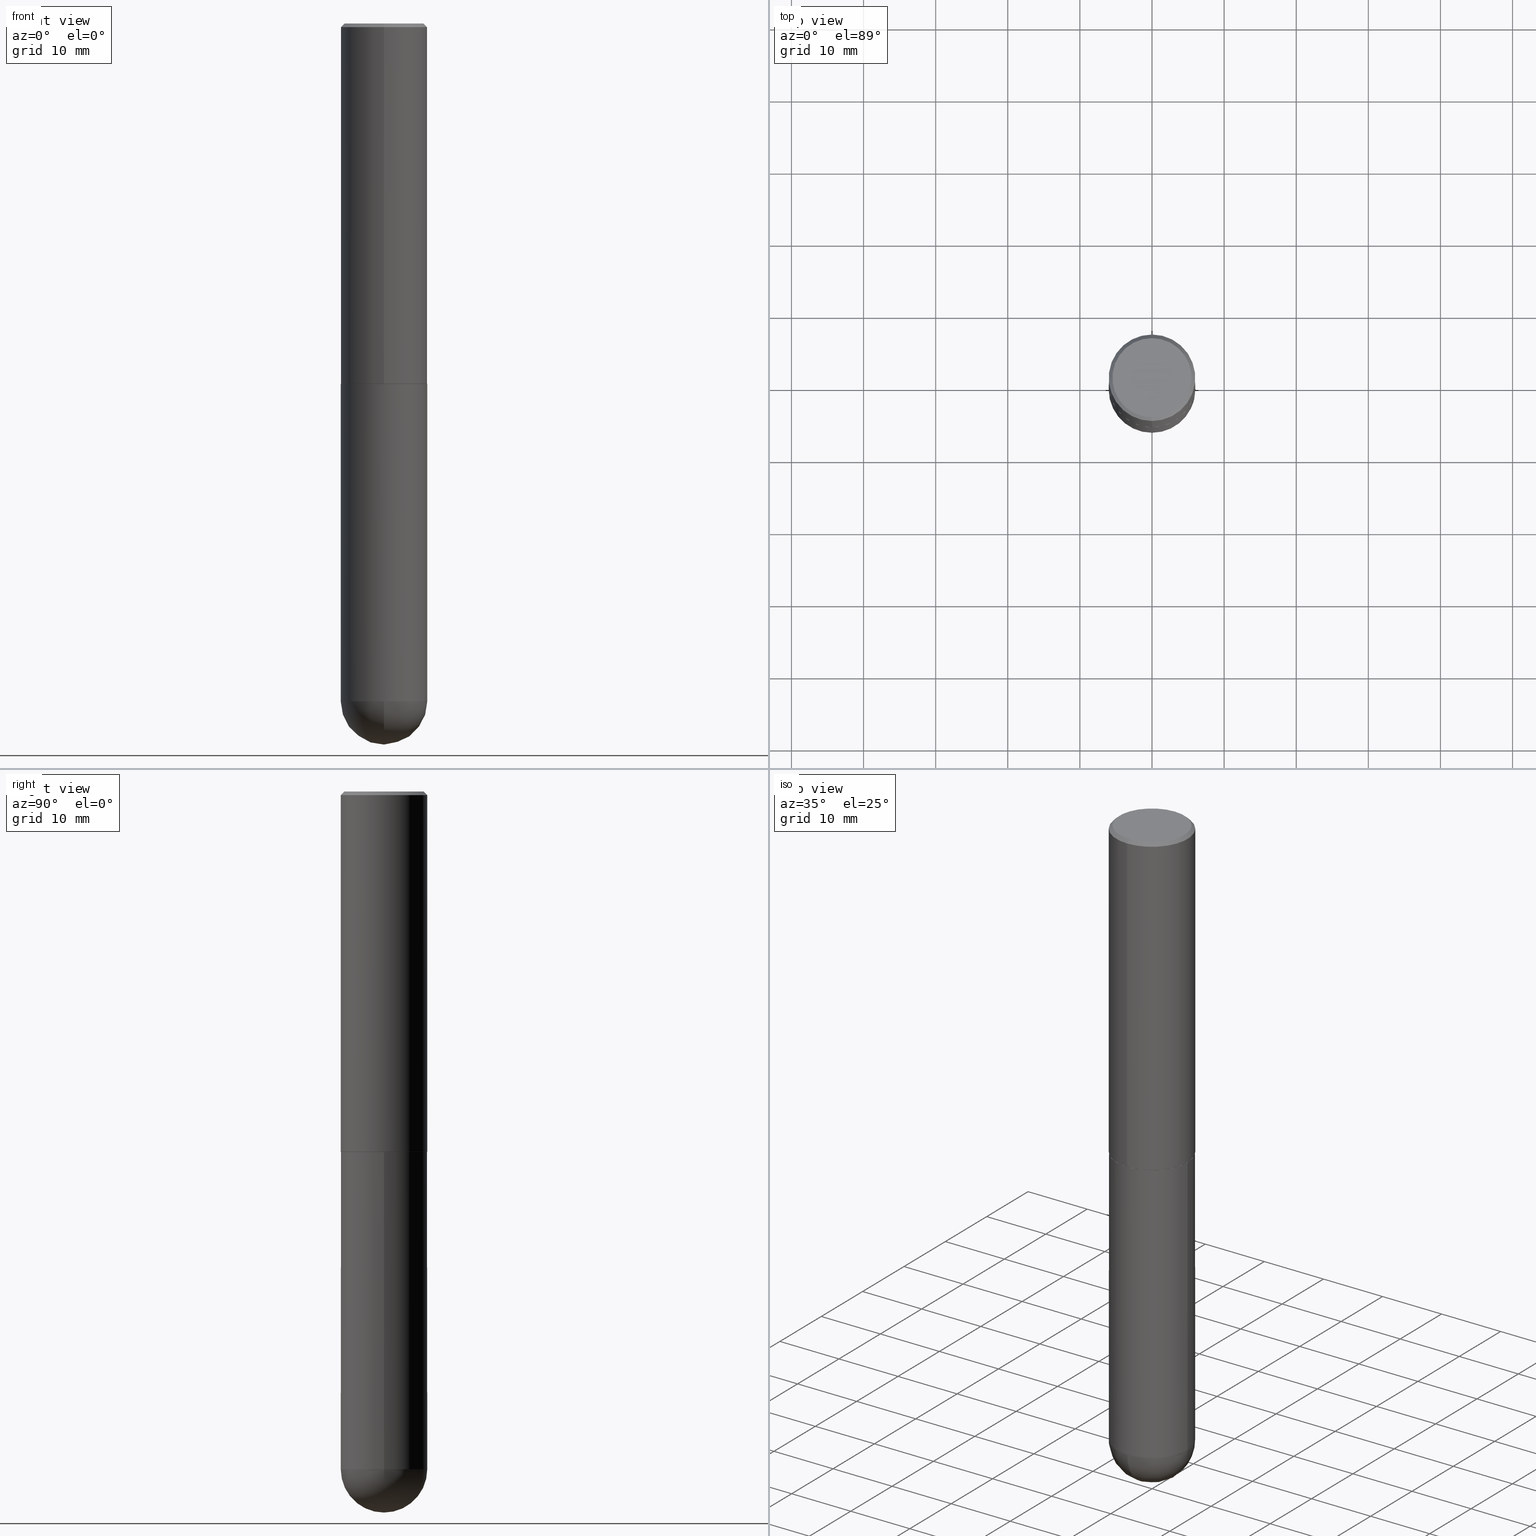
[diagram: canonical four-view strip — front | top / right | iso, engineering-drawing reading convention]
A machine part, canonical four-view strip (front | top / right | iso — engineering-drawing reading convention). The complete STEP part file that produces these views, byte-faithful:
ISO-10303-21;
HEADER;
FILE_DESCRIPTION (( 'STEP AP203' ),
    '1' );
FILE_NAME ('49563.STEP',
    '2024-04-10T12:25:05',
    ( '' ),
    ( '' ),
    'SwSTEP 2.0',
    'SolidWorks 2023',
    '' );
FILE_SCHEMA (( 'CONFIG_CONTROL_DESIGN' ));
ENDSEC;

DATA;
#1 = ORIENTED_EDGE ( 'NONE', *, *, #42, .F. ) ;
#2 = VECTOR ( 'NONE', #267, 39.37007874015748143 ) ;
#3 = CC_DESIGN_SECURITY_CLASSIFICATION ( #91, ( #269 ) ) ;
#4 = PERSON_AND_ORGANIZATION ( #50, #350 ) ;
#5 = CC_DESIGN_DATE_AND_TIME_ASSIGNMENT ( #202, #335, ( #91 ) ) ;
#6 = CARTESIAN_POINT ( 'NONE',  ( -1.551844647095920142E-15, -0.2162000000000000033, 6.958299922090800394E-16 ) ) ;
#7 = APPROVAL_STATUS ( 'not_yet_approved' ) ;
#8 = DIRECTION ( 'NONE',  ( 2.438088387897960049E-29, -3.491481338843145188E-15, -1.000000000000000000 ) ) ;
#9 = EDGE_CURVE ( 'NONE', #189, #373, #184, .T. ) ;
#10 = CARTESIAN_POINT ( 'NONE',  ( 0.000000000000000000, 0.000000000000000000, 0.000000000000000000 ) ) ;
#11 = VECTOR ( 'NONE', #204, 39.37007874015748143 ) ;
#12 = CIRCLE ( 'NONE', #158, 0.2361999999999999933 ) ;
#13 = LOCAL_TIME ( 8, 25, 5.000000000000000000, #266 ) ;
#14 = SHAPE_DEFINITION_REPRESENTATION ( #21, #132 ) ;
#15 = DIRECTION ( 'NONE',  ( -2.445468806185136597E-29, 3.491481338843145583E-15, 1.000000000000000000 ) ) ;
#16 = CARTESIAN_POINT ( 'NONE',  ( -0.2361999999999999933, -8.218825635286365458E-15, -1.968500000000000139 ) ) ;
#17 = MANIFOLD_SOLID_BREP ( 'Body-Move/Copy2[1]', #45 ) ;
#18 = DIRECTION ( 'NONE',  ( -2.445468806185136597E-29, 3.491481338843145583E-15, 1.000000000000000000 ) ) ;
#19 = CIRCLE ( 'NONE', #302, 0.2361999999999999933 ) ;
#20 = AXIS2_PLACEMENT_3D ( 'NONE', #272, #152, #342 ) ;
#21 = PRODUCT_DEFINITION_SHAPE ( 'NONE', 'NONE',  #86 ) ;
#22 = DIRECTION ( 'NONE',  ( -6.982962677686265922E-15, -1.000000000000000000, 3.487819265831411744E-15 ) ) ;
#23 = FACE_OUTER_BOUND ( 'NONE', #155, .T. ) ;
#24 = ADVANCED_FACE ( 'NONE', ( #357 ), #293, .T. ) ;
#25 = CARTESIAN_POINT ( 'NONE',  ( 1.509716530915770718E-15, 0.2162000000000000033, -7.849205782917402841E-16 ) ) ;
#26 = ORIENTED_EDGE ( 'NONE', *, *, #80, .T. ) ;
#27 = EDGE_CURVE ( 'NONE', #352, #40, #19, .T. ) ;
#28 = VECTOR ( 'NONE', #229, 39.37007874015748854 ) ;
#29 = CC_DESIGN_APPROVAL ( #346, ( #269 ) ) ;
#30 = DIRECTION ( 'NONE',  ( -6.982962677686265133E-15, -1.000000000000000000, 3.469747663417773847E-15 ) ) ;
#31 = DIRECTION ( 'NONE',  ( 0.000000000000000000, 0.000000000000000000, 1.000000000000000000 ) ) ;
#32 = ORIENTED_EDGE ( 'NONE', *, *, #195, .F. ) ;
#33 = AXIS2_PLACEMENT_3D ( 'NONE', #241, #301, #341 ) ;
#34 = PERSON_AND_ORGANIZATION ( #50, #350 ) ;
#35 = LOCAL_TIME ( 8, 25, 5.000000000000000000, #330 ) ;
#36 = ORIENTED_EDGE ( 'NONE', *, *, #328, .F. ) ;
#37 = FACE_OUTER_BOUND ( 'NONE', #381, .T. ) ;
#38 = ORIENTED_EDGE ( 'NONE', *, *, #130, .T. ) ;
#39 = LINE ( 'NONE', #67, #28 ) ;
#40 = VERTEX_POINT ( 'NONE', #16 ) ;
#41 = EDGE_CURVE ( 'NONE', #383, #289, #73, .T. ) ;
#42 = EDGE_CURVE ( 'NONE', #317, #40, #138, .T. ) ;
#43 = CARTESIAN_POINT ( 'NONE',  ( 1.671196514507803309E-15, 0.2351999999999931368, -1.968500000000000805 ) ) ;
#44 = CARTESIAN_POINT ( 'NONE',  ( 1.649375784469544054E-15, 0.2361999999999931377, -1.968500000000000805 ) ) ;
#45 = CLOSED_SHELL ( 'NONE', ( #304, #340, #65, #144, #24 ) ) ;
#46 = AXIS2_PLACEMENT_3D ( 'NONE', #273, #303, #115 ) ;
#47 = COORDINATED_UNIVERSAL_TIME_OFFSET ( 5, 0, .BEHIND. ) ;
#48 = DIRECTION ( 'NONE',  ( -6.982962677686265922E-15, -1.000000000000000000, 3.493171675597534146E-15 ) ) ;
#49 = DIRECTION ( 'NONE',  ( -7.105427357601001070E-15, -1.000000000000000000, 0.000000000000000000 ) ) ;
#50 = PERSON ( 'UNSPECIFIED', 'UNSPECIFIED', 'UNSPECIFIED', ('UNSPECIFIED'), ('UNSPECIFIED'), ('UNSPECIFIED') ) ;
#51 = DIRECTION ( 'NONE',  ( -6.982962677686265922E-15, -1.000000000000000000, 3.493171675597534146E-15 ) ) ;
#52 = CARTESIAN_POINT ( 'NONE',  ( 4.811581814490893760E-29, -6.876308443413746847E-15, -1.968500000000000139 ) ) ;
#53 = CARTESIAN_POINT ( 'NONE',  ( 4.809137526040556277E-29, -6.872815271738149679E-15, -1.967500000000000249 ) ) ;
#54 = ORIENTED_EDGE ( 'NONE', *, *, #191, .F. ) ;
#55 = CARTESIAN_POINT ( 'NONE',  ( 9.050190957929953666E-29, -1.292127413879071357E-14, -3.700800000000000090 ) ) ;
#56 = CC_DESIGN_PERSON_AND_ORGANIZATION_ASSIGNMENT ( #396, #295, ( #269 ) ) ;
#57 = CIRCLE ( 'NONE', #120, 0.2362000000000002709 ) ;
#58 = EDGE_CURVE ( 'NONE', #216, #354, #57, .T. ) ;
#59 =( GEOMETRIC_REPRESENTATION_CONTEXT ( 3 ) GLOBAL_UNCERTAINTY_ASSIGNED_CONTEXT ( ( #90 ) ) GLOBAL_UNIT_ASSIGNED_CONTEXT ( ( #288, #122, #410 ) ) REPRESENTATION_CONTEXT ( 'NONE', 'WORKASPACE' ) );
#60 = ORIENTED_EDGE ( 'NONE', *, *, #70, .F. ) ;
#61 = APPLICATION_PROTOCOL_DEFINITION ( 'international standard', 'config_control_design', 1994, #143 ) ;
#62 = EDGE_LOOP ( 'NONE', ( #54, #276, #93, #320 ) ) ;
#63 = AXIS2_PLACEMENT_3D ( 'NONE', #338, #148, #402 ) ;
#64 = CARTESIAN_POINT ( 'NONE',  ( 4.811581814490893760E-29, -6.876308443413746847E-15, -1.968500000000000139 ) ) ;
#65 = ADVANCED_FACE ( 'NONE', ( #292 ), #337, .T. ) ;
#66 = ORIENTED_EDGE ( 'NONE', *, *, #41, .T. ) ;
#67 = CARTESIAN_POINT ( 'NONE',  ( -1.620449627073635079E-15, -0.2362000000000000766, -0.01999999999999922673 ) ) ;
#68 = ORIENTED_EDGE ( 'NONE', *, *, #353, .T. ) ;
#69 = ORIENTED_EDGE ( 'NONE', *, *, #291, .T. ) ;
#70 = EDGE_CURVE ( 'NONE', #160, #131, #397, .T. ) ;
#71 = AXIS2_PLACEMENT_3D ( 'NONE', #10, #296, #142 ) ;
#72 = AXIS2_PLACEMENT_3D ( 'NONE', #129, #285, #314 ) ;
#73 = LINE ( 'NONE', #167, #11 ) ;
#74 = DIRECTION ( 'NONE',  ( -2.444288450338274442E-29, 3.493171675597534541E-15, 1.000000000000000000 ) ) ;
#75 = CARTESIAN_POINT ( 'NONE',  ( -0.2361999999999999933, 1.678301941865356591E-15, -1.161852468318208757E-29 ) ) ;
#76 = EDGE_CURVE ( 'NONE', #373, #160, #235, .T. ) ;
#77 = VECTOR ( 'NONE', #74, 39.37007874015748143 ) ;
#78 = CARTESIAN_POINT ( 'NONE',  ( 4.811581814490893760E-29, -6.876308443413746847E-15, -1.968500000000000139 ) ) ;
#79 = AXIS2_PLACEMENT_3D ( 'NONE', #136, #101, #107 ) ;
#80 = EDGE_CURVE ( 'NONE', #339, #289, #201, .T. ) ;
#81 = CARTESIAN_POINT ( 'NONE',  ( 1.649375784469496525E-15, 0.2361999999999999378, -0.02000000000000087472 ) ) ;
#82 = CYLINDRICAL_SURFACE ( 'NONE', #110, 0.2362000000000001043 ) ;
#83 = PRODUCT ( '49563', '49563', '', ( #154 ) ) ;
#84 = ORIENTED_EDGE ( 'NONE', *, *, #343, .T. ) ;
#85 = LINE ( 'NONE', #212, #369 ) ;
#86 = PRODUCT_DEFINITION ( 'UNKNOWN', '', #269, #187 ) ;
#87 = FACE_OUTER_BOUND ( 'NONE', #96, .T. ) ;
#88 = CARTESIAN_POINT ( 'NONE',  ( -0.2361999999999999933, -8.218825635286368613E-15, -3.700800000000000090 ) ) ;
#89 = DIRECTION ( 'NONE',  ( 2.444288450338274722E-29, -3.493171675597534541E-15, -1.000000000000000000 ) ) ;
#90 = UNCERTAINTY_MEASURE_WITH_UNIT (LENGTH_MEASURE( 1.000000000000000082E-05 ), #288, 'distance_accuracy_value', 'NONE');
#91 = SECURITY_CLASSIFICATION ( '', '', #391 ) ;
#92 = COORDINATED_UNIVERSAL_TIME_OFFSET ( 5, 0, .BEHIND. ) ;
#93 = ORIENTED_EDGE ( 'NONE', *, *, #76, .T. ) ;
#94 = CARTESIAN_POINT ( 'NONE',  ( 0.000000000000000000, 0.000000000000000000, 0.000000000000000000 ) ) ;
#95 = ORIENTED_EDGE ( 'NONE', *, *, #291, .F. ) ;
#96 = EDGE_LOOP ( 'NONE', ( #278, #313, #388, #32, #84 ) ) ;
#97 = PERSON_AND_ORGANIZATION ( #50, #350 ) ;
#98 = ORIENTED_EDGE ( 'NONE', *, *, #382, .F. ) ;
#99 = DIRECTION ( 'NONE',  ( 1.000000000000000000, -6.982962677686265133E-15, 0.000000000000000000 ) ) ;
#100 = ORIENTED_EDGE ( 'NONE', *, *, #208, .T. ) ;
#101 = DIRECTION ( 'NONE',  ( -2.444288450338274722E-29, 3.493171675597534541E-15, 1.000000000000000000 ) ) ;
#102 = CONICAL_SURFACE ( 'NONE', #193, 0.2361999999999999933, 0.7853981633974482790 ) ;
#103 = CARTESIAN_POINT ( 'NONE',  ( 9.050190957929953666E-29, -1.292127413879071357E-14, -3.700800000000000090 ) ) ;
#104 = APPROVAL_DATE_TIME ( #297, #109 ) ;
#105 = DIRECTION ( 'NONE',  ( -1.000000000000000000, 6.982962677686265922E-15, -4.876176775795935793E-29 ) ) ;
#106 = CC_DESIGN_PERSON_AND_ORGANIZATION_ASSIGNMENT ( #97, #380, ( #86 ) ) ;
#107 = DIRECTION ( 'NONE',  ( -6.982962677686265133E-15, -1.000000000000000000, 3.469747663417773847E-15 ) ) ;
#108 = APPROVAL_DATE_TIME ( #236, #346 ) ;
#109 = APPROVAL ( #7, 'UNSPECIFIED' ) ;
#110 = AXIS2_PLACEMENT_3D ( 'NONE', #114, #210, #51 ) ;
#111 = SPHERICAL_SURFACE ( 'NONE', #72, 0.2362000000000002709 ) ;
#112 = EDGE_CURVE ( 'NONE', #383, #160, #290, .T. ) ;
#113 = ORIENTED_EDGE ( 'NONE', *, *, #260, .F. ) ;
#114 = CARTESIAN_POINT ( 'NONE',  ( 0.000000000000000000, 0.000000000000000000, 0.000000000000000000 ) ) ;
#115 = DIRECTION ( 'NONE',  ( -6.982962677686265922E-15, -1.000000000000000000, 3.493171675597534541E-15 ) ) ;
#116 = DIRECTION ( 'NONE',  ( 6.982962677686265922E-15, 1.000000000000000000, -3.493171675597534541E-15 ) ) ;
#117 = FACE_OUTER_BOUND ( 'NONE', #211, .T. ) ;
#118 = APPROVAL_ROLE ( '' ) ;
#119 = VERTEX_POINT ( 'NONE', #6 ) ;
#120 = AXIS2_PLACEMENT_3D ( 'NONE', #399, #237, #49 ) ;
#121 = AXIS2_PLACEMENT_3D ( 'NONE', #103, #203, #329 ) ;
#122 =( NAMED_UNIT ( * ) PLANE_ANGLE_UNIT ( ) SI_UNIT ( $, .RADIAN. ) );
#123 = ORIENTED_EDGE ( 'NONE', *, *, #208, .F. ) ;
#124 = COORDINATED_UNIVERSAL_TIME_OFFSET ( 5, 0, .BEHIND. ) ;
#125 = ORIENTED_EDGE ( 'NONE', *, *, #70, .T. ) ;
#126 = PERSON_AND_ORGANIZATION_ROLE ( 'design_owner' ) ;
#127 = ORIENTED_EDGE ( 'NONE', *, *, #58, .F. ) ;
#128 = AXIS2_PLACEMENT_3D ( 'NONE', #64, #384, #190 ) ;
#129 = CARTESIAN_POINT ( 'NONE',  ( 8.719071180016067419E-29, -1.339545650693076387E-14, -3.700800000000000090 ) ) ;
#130 = EDGE_CURVE ( 'NONE', #354, #408, #232, .T. ) ;
#131 = VERTEX_POINT ( 'NONE', #171 ) ;
#132 = ADVANCED_BREP_SHAPE_REPRESENTATION ( '49563', ( #17, #153, #268 ), #59 ) ;
#133 = ADVANCED_FACE ( 'NONE', ( #368 ), #225, .T. ) ;
#134 = CARTESIAN_POINT ( 'NONE',  ( -1.649375784469449391E-15, -0.2362000000000070710, -1.967499999999999361 ) ) ;
#135 = CALENDAR_DATE ( 2024, 10, 4 ) ;
#136 = CARTESIAN_POINT ( 'NONE',  ( 4.809137526040556277E-29, -6.872815271738149679E-15, -1.967500000000000249 ) ) ;
#137 = CIRCLE ( 'NONE', #379, 0.2362000000000002153 ) ;
#138 = LINE ( 'NONE', #75, #2 ) ;
#139 = APPROVAL_PERSON_ORGANIZATION ( #161, #181, #118 ) ;
#140 = CALENDAR_DATE ( 2024, 10, 4 ) ;
#141 = APPROVAL_STATUS ( 'not_yet_approved' ) ;
#142 = DIRECTION ( 'NONE',  ( 1.000000000000000000, -6.982962677686266711E-15, 4.876176775795936353E-29 ) ) ;
#143 = APPLICATION_CONTEXT ( 'configuration controlled 3d designs of mechanical parts and assemblies' ) ;
#144 = ADVANCED_FACE ( 'NONE', ( #231 ), #209, .F. ) ;
#145 = CIRCLE ( 'NONE', #178, 0.2361999999999999933 ) ;
#146 = FACE_OUTER_BOUND ( 'NONE', #196, .T. ) ;
#147 = DIRECTION ( 'NONE',  ( -6.982962677686265133E-15, -1.000000000000000000, 3.484499991918703113E-15 ) ) ;
#148 = DIRECTION ( 'NONE',  ( 2.444288450338274722E-29, -3.493171675597534541E-15, -1.000000000000000000 ) ) ;
#149 = CIRCLE ( 'NONE', #387, 0.2361999999999999933 ) ;
#150 = CIRCLE ( 'NONE', #275, 0.2351999999999999924 ) ;
#151 = ORIENTED_EDGE ( 'NONE', *, *, #265, .F. ) ;
#152 = DIRECTION ( 'NONE',  ( -2.445468806185136597E-29, 3.491481338843145583E-15, 1.000000000000000000 ) ) ;
#153 = MANIFOLD_SOLID_BREP ( 'Body-Move/Copy2[2]', #347 ) ;
#154 = MECHANICAL_CONTEXT ( 'NONE', #164, 'mechanical' ) ;
#155 = EDGE_LOOP ( 'NONE', ( #165, #281, #125, #228 ) ) ;
#156 = CARTESIAN_POINT ( 'NONE',  ( -1.642392821791761602E-15, -0.2352000000000068480, -1.968499999999999250 ) ) ;
#157 = EDGE_LOOP ( 'NONE', ( #322, #356 ) ) ;
#158 = AXIS2_PLACEMENT_3D ( 'NONE', #400, #248, #99 ) ;
#159 = APPROVAL_STATUS ( 'not_yet_approved' ) ;
#160 = VERTEX_POINT ( 'NONE', #134 ) ;
#161 = PERSON_AND_ORGANIZATION ( #50, #350 ) ;
#162 = ORIENTED_EDGE ( 'NONE', *, *, #58, .T. ) ;
#163 = ADVANCED_FACE ( 'NONE', ( #207 ), #360, .T. ) ;
#164 = APPLICATION_CONTEXT ( 'configuration controlled 3d designs of mechanical parts and assemblies' ) ;
#165 = ORIENTED_EDGE ( 'NONE', *, *, #41, .F. ) ;
#166 = PERSON_AND_ORGANIZATION ( #50, #350 ) ;
#167 = CARTESIAN_POINT ( 'NONE',  ( 1.678301941865357183E-15, 0.2362000000000001043, -8.250871497761379229E-16 ) ) ;
#168 = DIRECTION ( 'NONE',  ( 1.000000000000000000, -6.982962677686269077E-15, 0.000000000000000000 ) ) ;
#169 = CIRCLE ( 'NONE', #348, 0.2162000000000000033 ) ;
#170 = CARTESIAN_POINT ( 'NONE',  ( 4.811581814490893760E-29, -6.876308443413746847E-15, -1.968500000000000139 ) ) ;
#171 = CARTESIAN_POINT ( 'NONE',  ( -1.620449627073635079E-15, -0.2362000000000000766, -0.01999999999999922673 ) ) ;
#172 = LOCAL_TIME ( 8, 25, 5.000000000000000000, #92 ) ;
#173 = EDGE_CURVE ( 'NONE', #289, #131, #145, .T. ) ;
#174 = CARTESIAN_POINT ( 'NONE',  ( 4.888576900676561635E-31, -6.986343351195086880E-17, -0.02000000000000005246 ) ) ;
#175 = DIRECTION ( 'NONE',  ( 6.982962677686265922E-15, 1.000000000000000000, -3.487819265831411744E-15 ) ) ;
#176 = VECTOR ( 'NONE', #332, 39.37007874015748854 ) ;
#177 = DIRECTION ( 'NONE',  ( -2.445468806185136877E-29, 3.491481338843145188E-15, 1.000000000000000000 ) ) ;
#178 = AXIS2_PLACEMENT_3D ( 'NONE', #174, #365, #364 ) ;
#179 = CARTESIAN_POINT ( 'NONE',  ( 9.306790425912204830E-29, -1.420568132046758614E-14, -3.937000000000000277 ) ) ;
#180 = CARTESIAN_POINT ( 'NONE',  ( 0.000000000000000000, 0.000000000000000000, 0.000000000000000000 ) ) ;
#181 = APPROVAL ( #159, 'UNSPECIFIED' ) ;
#182 = ORIENTED_EDGE ( 'NONE', *, *, #265, .T. ) ;
#183 = DIRECTION ( 'NONE',  ( 1.000000000000000000, -6.982962677686265133E-15, 0.000000000000000000 ) ) ;
#184 = CIRCLE ( 'NONE', #239, 0.2351999999999999924 ) ;
#185 = LOCAL_TIME ( 8, 25, 5.000000000000000000, #124 ) ;
#186 = CC_DESIGN_PERSON_AND_ORGANIZATION_ASSIGNMENT ( #393, #324, ( #91 ) ) ;
#187 = DESIGN_CONTEXT ( 'detailed design', #143, 'design' ) ;
#188 = DATE_TIME_ROLE ( 'creation_date' ) ;
#189 = VERTEX_POINT ( 'NONE', #298 ) ;
#190 = DIRECTION ( 'NONE',  ( -6.982962677686265133E-15, -1.000000000000000000, 3.484499991918703113E-15 ) ) ;
#191 = EDGE_CURVE ( 'NONE', #189, #383, #331, .T. ) ;
#192 = ORIENTED_EDGE ( 'NONE', *, *, #353, .F. ) ;
#193 = AXIS2_PLACEMENT_3D ( 'NONE', #374, #89, #175 ) ;
#194 = CC_DESIGN_APPROVAL ( #181, ( #86 ) ) ;
#195 = EDGE_CURVE ( 'NONE', #408, #352, #85, .T. ) ;
#196 = EDGE_LOOP ( 'NONE', ( #151, #344 ) ) ;
#197 = CARTESIAN_POINT ( 'NONE',  ( 0.2361999999999999933, -8.522356799982228232E-15, -1.968500000000000139 ) ) ;
#198 = EDGE_LOOP ( 'NONE', ( #359, #68 ) ) ;
#199 = CC_DESIGN_PERSON_AND_ORGANIZATION_ASSIGNMENT ( #166, #263, ( #269 ) ) ;
#200 = ORIENTED_EDGE ( 'NONE', *, *, #195, .T. ) ;
#201 = LINE ( 'NONE', #81, #176 ) ;
#202 = DATE_AND_TIME ( #135, #35 ) ;
#203 = DIRECTION ( 'NONE',  ( -2.445468806185136597E-29, 3.491481338843145583E-15, 1.000000000000000000 ) ) ;
#204 = DIRECTION ( 'NONE',  ( -2.444288450338274442E-29, 3.493171675597534541E-15, 1.000000000000000000 ) ) ;
#205 = AXIS2_PLACEMENT_3D ( 'NONE', #412, #321, #256 ) ;
#206 = DIRECTION ( 'NONE',  ( -2.444288450338274722E-29, 3.493171675597534541E-15, 1.000000000000000000 ) ) ;
#207 = FACE_OUTER_BOUND ( 'NONE', #230, .T. ) ;
#208 = EDGE_CURVE ( 'NONE', #131, #289, #316, .T. ) ;
#209 = PLANE ( 'NONE',  #262 ) ;
#210 = DIRECTION ( 'NONE',  ( -2.444288450338274722E-29, 3.493171675597534541E-15, 1.000000000000000000 ) ) ;
#211 = EDGE_LOOP ( 'NONE', ( #389, #254, #100, #257 ) ) ;
#212 = CARTESIAN_POINT ( 'NONE',  ( 0.2361999999999999933, -1.649375784469496131E-15, 1.151752954443000088E-29 ) ) ;
#213 = CIRCLE ( 'NONE', #33, 0.2162000000000000033 ) ;
#214 = CYLINDRICAL_SURFACE ( 'NONE', #255, 0.2361999999999999933 ) ;
#215 = EDGE_CURVE ( 'NONE', #119, #339, #213, .T. ) ;
#216 = VERTEX_POINT ( 'NONE', #179 ) ;
#217 = DIRECTION ( 'NONE',  ( 1.000000000000000000, -6.982962677686265922E-15, 4.883557194083112340E-29 ) ) ;
#218 = CARTESIAN_POINT ( 'NONE',  ( 1.649375784469585666E-15, 0.2361999999999869759, -3.700800000000000978 ) ) ;
#219 = CALENDAR_DATE ( 2024, 10, 4 ) ;
#220 = ORIENTED_EDGE ( 'NONE', *, *, #315, .F. ) ;
#221 = DIRECTION ( 'NONE',  ( 1.000000000000000000, 0.000000000000000000, 0.000000000000000000 ) ) ;
#222 = ORIENTED_EDGE ( 'NONE', *, *, #343, .F. ) ;
#223 = LENGTH_MEASURE_WITH_UNIT ( LENGTH_MEASURE( 0.02539999999999999897 ), #279 );
#224 = EDGE_LOOP ( 'NONE', ( #308, #162, #95, #36 ) ) ;
#225 = CONICAL_SURFACE ( 'NONE', #362, 0.2351999999999999924, 0.7853981633976532262 ) ;
#226 = CC_DESIGN_APPROVAL ( #109, ( #91 ) ) ;
#227 = CC_DESIGN_DATE_AND_TIME_ASSIGNMENT ( #351, #188, ( #86 ) ) ;
#228 = ORIENTED_EDGE ( 'NONE', *, *, #173, .F. ) ;
#229 = DIRECTION ( 'NONE',  ( -4.851104656540963486E-15, -0.7071067811865499042, -0.7071067811865450192 ) ) ;
#230 = EDGE_LOOP ( 'NONE', ( #287, #66, #123, #60 ) ) ;
#231 = FACE_OUTER_BOUND ( 'NONE', #198, .T. ) ;
#232 = CIRCLE ( 'NONE', #121, 0.2361999999999999933 ) ;
#233 = DIRECTION ( 'NONE',  ( -2.444288450338274722E-29, 3.493171675597534541E-15, 1.000000000000000000 ) ) ;
#234 = CC_DESIGN_PERSON_AND_ORGANIZATION_ASSIGNMENT ( #34, #126, ( #83 ) ) ;
#235 = LINE ( 'NONE', #370, #361 ) ;
#236 = DATE_AND_TIME ( #366, #404 ) ;
#237 = DIRECTION ( 'NONE',  ( -1.000000000000000000, 7.105427357601001070E-15, -4.926315508542082329E-29 ) ) ;
#238 = ADVANCED_FACE ( 'NONE', ( #23 ), #82, .T. ) ;
#239 = AXIS2_PLACEMENT_3D ( 'NONE', #170, #206, #390 ) ;
#240 = CARTESIAN_POINT ( 'NONE',  ( -1.649375784469496722E-15, -0.2362000000000001043, 8.250871497761379229E-16 ) ) ;
#241 = CARTESIAN_POINT ( 'NONE',  ( 1.451753937304763224E-45, -2.074724745775553207E-31, -5.939372405510689147E-17 ) ) ;
#242 = CARTESIAN_POINT ( 'NONE',  ( 1.451753937304763224E-45, -2.074724745775553207E-31, -5.939372405510689147E-17 ) ) ;
#243 = ADVANCED_FACE ( 'NONE', ( #305 ), #409, .T. ) ;
#244 = CARTESIAN_POINT ( 'NONE',  ( 1.649375784469496525E-15, 0.2361999999999999378, -0.02000000000000087472 ) ) ;
#245 = CIRCLE ( 'NONE', #205, 0.2361999999999999933 ) ;
#246 = DIRECTION ( 'NONE',  ( -2.444288450338274722E-29, 3.493171675597534541E-15, 1.000000000000000000 ) ) ;
#247 = CARTESIAN_POINT ( 'NONE',  ( 1.579546157692633621E-15, 0.2162000000000000033, -8.146174403192938962E-16 ) ) ;
#248 = DIRECTION ( 'NONE',  ( -2.445468806185136597E-29, 3.491481338843145583E-15, 1.000000000000000000 ) ) ;
#249 = AXIS2_PLACEMENT_3D ( 'NONE', #376, #372, #22 ) ;
#250 = VERTEX_POINT ( 'NONE', #218 ) ;
#251 = ORIENTED_EDGE ( 'NONE', *, *, #130, .F. ) ;
#252 = CARTESIAN_POINT ( 'NONE',  ( 1.678301941865381835E-15, 0.2361999999999933597, -1.967500000000001137 ) ) ;
#253 = ORIENTED_EDGE ( 'NONE', *, *, #76, .F. ) ;
#254 = ORIENTED_EDGE ( 'NONE', *, *, #382, .T. ) ;
#255 = AXIS2_PLACEMENT_3D ( 'NONE', #180, #401, #378 ) ;
#256 = DIRECTION ( 'NONE',  ( 1.000000000000000000, -6.982962677686269077E-15, 0.000000000000000000 ) ) ;
#257 = ORIENTED_EDGE ( 'NONE', *, *, #80, .F. ) ;
#258 = APPROVAL_ROLE ( '' ) ;
#259 = DIRECTION ( 'NONE',  ( -6.982962677686265133E-15, -1.000000000000000000, 3.484499991918703113E-15 ) ) ;
#260 = EDGE_CURVE ( 'NONE', #160, #383, #137, .T. ) ;
#261 = CARTESIAN_POINT ( 'NONE',  ( 0.000000000000000000, 0.000000000000000000, 0.000000000000000000 ) ) ;
#262 = AXIS2_PLACEMENT_3D ( 'NONE', #44, #8, #105 ) ;
#263 = PERSON_AND_ORGANIZATION_ROLE ( 'creator' ) ;
#264 = CARTESIAN_POINT ( 'NONE',  ( 8.719071180016067419E-29, -1.339545650693076387E-14, -3.700800000000000090 ) ) ;
#265 = EDGE_CURVE ( 'NONE', #373, #189, #150, .T. ) ;
#266 = COORDINATED_UNIVERSAL_TIME_OFFSET ( 5, 0, .BEHIND. ) ;
#267 = DIRECTION ( 'NONE',  ( -2.445468806185136877E-29, 3.491481338843145188E-15, 1.000000000000000000 ) ) ;
#268 = AXIS2_PLACEMENT_3D ( 'NONE', #94, #31, #221 ) ;
#269 = PRODUCT_DEFINITION_FORMATION_WITH_SPECIFIED_SOURCE ( 'ANY', '', #83, .NOT_KNOWN. ) ;
#270 = FACE_OUTER_BOUND ( 'NONE', #224, .T. ) ;
#271 = ORIENTED_EDGE ( 'NONE', *, *, #173, .T. ) ;
#272 = CARTESIAN_POINT ( 'NONE',  ( 9.050190957929953666E-29, -1.292127413879071357E-14, -3.700800000000000090 ) ) ;
#273 = CARTESIAN_POINT ( 'NONE',  ( 4.811581814490893760E-29, -6.876308443413746847E-15, -1.968500000000000139 ) ) ;
#274 = DIRECTION ( 'NONE',  ( -2.444288450338274722E-29, 3.493171675597534541E-15, 1.000000000000000000 ) ) ;
#275 = AXIS2_PLACEMENT_3D ( 'NONE', #52, #307, #147 ) ;
#276 = ORIENTED_EDGE ( 'NONE', *, *, #9, .T. ) ;
#277 = PLANE ( 'NONE',  #46 ) ;
#278 = ORIENTED_EDGE ( 'NONE', *, *, #328, .T. ) ;
#279 =( LENGTH_UNIT ( ) NAMED_UNIT ( * ) SI_UNIT ( $, .METRE. ) );
#280 = VECTOR ( 'NONE', #300, 39.37007874015748854 ) ;
#281 = ORIENTED_EDGE ( 'NONE', *, *, #112, .T. ) ;
#282 = CARTESIAN_POINT ( 'NONE',  ( -1.678301941865268633E-15, -0.2362000000000132882, -3.700799999999998757 ) ) ;
#283 = EDGE_LOOP ( 'NONE', ( #127, #385, #222, #251 ) ) ;
#284 = ADVANCED_FACE ( 'NONE', ( #146 ), #277, .F. ) ;
#285 = DIRECTION ( 'NONE',  ( -1.000000000000000000, 6.982962677686265922E-15, -4.883557194083112901E-29 ) ) ;
#286 = DIMENSIONAL_EXPONENTS ( 1.000000000000000000, 0.000000000000000000, 0.000000000000000000, 0.000000000000000000, 0.000000000000000000, 0.000000000000000000, 0.000000000000000000 ) ;
#287 = ORIENTED_EDGE ( 'NONE', *, *, #260, .T. ) ;
#288 =( CONVERSION_BASED_UNIT ( 'INCH', #223 ) LENGTH_UNIT ( ) NAMED_UNIT ( #286 ) );
#289 = VERTEX_POINT ( 'NONE', #244 ) ;
#290 = CIRCLE ( 'NONE', #79, 0.2362000000000002153 ) ;
#291 = EDGE_CURVE ( 'NONE', #317, #354, #395, .T. ) ;
#292 = FACE_OUTER_BOUND ( 'NONE', #283, .T. ) ;
#293 = CYLINDRICAL_SURFACE ( 'NONE', #71, 0.2361999999999999933 ) ;
#294 = DIRECTION ( 'NONE',  ( 6.982962677686265922E-15, 1.000000000000000000, -4.626330217890364603E-15 ) ) ;
#295 = PERSON_AND_ORGANIZATION_ROLE ( 'design_supplier' ) ;
#296 = DIRECTION ( 'NONE',  ( -2.445468806185136597E-29, 3.491481338843145583E-15, 1.000000000000000000 ) ) ;
#297 = DATE_AND_TIME ( #140, #13 ) ;
#298 = CARTESIAN_POINT ( 'NONE',  ( 1.674749228186604602E-15, 0.2351999999999931368, -1.968500000000000805 ) ) ;
#299 = APPROVAL_ROLE ( '' ) ;
#300 = DIRECTION ( 'NONE',  ( 5.024295867789091064E-15, 0.7071067811866947883, 0.7071067811864001351 ) ) ;
#301 = DIRECTION ( 'NONE',  ( -2.444288450338274722E-29, 3.493171675597534541E-15, 1.000000000000000000 ) ) ;
#302 = AXIS2_PLACEMENT_3D ( 'NONE', #392, #15, #168 ) ;
#303 = DIRECTION ( 'NONE',  ( -2.444288450338274442E-29, 3.493171675597534541E-15, 1.000000000000000000 ) ) ;
#304 = ADVANCED_FACE ( 'NONE', ( #87 ), #214, .T. ) ;
#305 = FACE_OUTER_BOUND ( 'NONE', #411, .T. ) ;
#306 = ADVANCED_FACE ( 'NONE', ( #405 ), #349, .F. ) ;
#307 = DIRECTION ( 'NONE',  ( -2.444288450338274722E-29, 3.493171675597534541E-15, 1.000000000000000000 ) ) ;
#308 = ORIENTED_EDGE ( 'NONE', *, *, #323, .F. ) ;
#309 = CONICAL_SURFACE ( 'NONE', #128, 0.2351999999999999924, 0.7853981633976532262 ) ;
#310 = CARTESIAN_POINT ( 'NONE',  ( 8.719071180016067419E-29, -1.339545650693076387E-14, -3.700800000000000090 ) ) ;
#311 = APPLICATION_PROTOCOL_DEFINITION ( 'international standard', 'config_control_design', 1994, #164 ) ;
#312 = PERSON_AND_ORGANIZATION ( #50, #350 ) ;
#313 = ORIENTED_EDGE ( 'NONE', *, *, #42, .T. ) ;
#314 = DIRECTION ( 'NONE',  ( 6.982962677686265922E-15, 1.000000000000000000, -4.626330217890364603E-15 ) ) ;
#315 = EDGE_CURVE ( 'NONE', #339, #119, #169, .T. ) ;
#316 = CIRCLE ( 'NONE', #249, 0.2361999999999999933 ) ;
#317 = VERTEX_POINT ( 'NONE', #88 ) ;
#318 = DATE_AND_TIME ( #355, #185 ) ;
#319 = ADVANCED_FACE ( 'NONE', ( #117 ), #102, .T. ) ;
#320 = ORIENTED_EDGE ( 'NONE', *, *, #112, .F. ) ;
#321 = DIRECTION ( 'NONE',  ( -2.445468806185136597E-29, 3.491481338843145583E-15, 1.000000000000000000 ) ) ;
#322 = ORIENTED_EDGE ( 'NONE', *, *, #315, .T. ) ;
#323 = EDGE_CURVE ( 'NONE', #216, #250, #334, .T. ) ;
#324 = PERSON_AND_ORGANIZATION_ROLE ( 'classification_officer' ) ;
#325 = EDGE_LOOP ( 'NONE', ( #1, #69, #38, #200, #192 ) ) ;
#326 = AXIS2_PLACEMENT_3D ( 'NONE', #261, #336, #48 ) ;
#327 = APPROVAL_PERSON_ORGANIZATION ( #4, #109, #258 ) ;
#328 = EDGE_CURVE ( 'NONE', #250, #317, #149, .T. ) ;
#329 = DIRECTION ( 'NONE',  ( 1.000000000000000000, -6.982962677686265133E-15, 0.000000000000000000 ) ) ;
#330 = COORDINATED_UNIVERSAL_TIME_OFFSET ( 5, 0, .BEHIND. ) ;
#331 = LINE ( 'NONE', #43, #280 ) ;
#332 = DIRECTION ( 'NONE',  ( 4.937700262164547253E-15, 0.7071067811865450192, -0.7071067811865499042 ) ) ;
#333 = AXIS2_PLACEMENT_3D ( 'NONE', #264, #394, #294 ) ;
#334 = CIRCLE ( 'NONE', #403, 0.2362000000000002709 ) ;
#335 = DATE_TIME_ROLE ( 'classification_date' ) ;
#336 = DIRECTION ( 'NONE',  ( -2.444288450338274722E-29, 3.493171675597534541E-15, 1.000000000000000000 ) ) ;
#337 = SPHERICAL_SURFACE ( 'NONE', #333, 0.2362000000000002709 ) ;
#338 = CARTESIAN_POINT ( 'NONE',  ( 4.888576900676561635E-31, -6.986343351195086880E-17, -0.02000000000000005246 ) ) ;
#339 = VERTEX_POINT ( 'NONE', #247 ) ;
#340 = ADVANCED_FACE ( 'NONE', ( #270 ), #111, .T. ) ;
#341 = DIRECTION ( 'NONE',  ( -6.982962677686265922E-15, -1.000000000000000000, 3.493171675597534541E-15 ) ) ;
#342 = DIRECTION ( 'NONE',  ( 1.000000000000000000, -6.982962677686265133E-15, 0.000000000000000000 ) ) ;
#343 = EDGE_CURVE ( 'NONE', #408, #250, #12, .T. ) ;
#344 = ORIENTED_EDGE ( 'NONE', *, *, #9, .F. ) ;
#345 = DIRECTION ( 'NONE',  ( 6.982962677686265922E-15, 1.000000000000000000, 0.000000000000000000 ) ) ;
#346 = APPROVAL ( #141, 'UNSPECIFIED' ) ;
#347 = CLOSED_SHELL ( 'NONE', ( #367, #163, #319, #243, #238, #133, #284, #306 ) ) ;
#348 = AXIS2_PLACEMENT_3D ( 'NONE', #242, #246, #377 ) ;
#349 = PLANE ( 'NONE',  #375 ) ;
#350 = ORGANIZATION ( 'UNSPECIFIED', 'UNSPECIFIED', '' ) ;
#351 = DATE_AND_TIME ( #219, #172 ) ;
#352 = VERTEX_POINT ( 'NONE', #197 ) ;
#353 = EDGE_CURVE ( 'NONE', #40, #352, #245, .T. ) ;
#354 = VERTEX_POINT ( 'NONE', #282 ) ;
#355 = CALENDAR_DATE ( 2024, 10, 4 ) ;
#356 = ORIENTED_EDGE ( 'NONE', *, *, #215, .T. ) ;
#357 = FACE_OUTER_BOUND ( 'NONE', #325, .T. ) ;
#358 = ORIENTED_EDGE ( 'NONE', *, *, #191, .T. ) ;
#359 = ORIENTED_EDGE ( 'NONE', *, *, #27, .T. ) ;
#360 = CYLINDRICAL_SURFACE ( 'NONE', #326, 0.2362000000000001043 ) ;
#361 = VECTOR ( 'NONE', #398, 39.37007874015748854 ) ;
#362 = AXIS2_PLACEMENT_3D ( 'NONE', #78, #233, #259 ) ;
#363 = APPROVAL_PERSON_ORGANIZATION ( #312, #346, #299 ) ;
#364 = DIRECTION ( 'NONE',  ( -6.982962677686265922E-15, -1.000000000000000000, 3.487819265831411744E-15 ) ) ;
#365 = DIRECTION ( 'NONE',  ( -2.444288450338274722E-29, 3.493171675597534541E-15, 1.000000000000000000 ) ) ;
#366 = CALENDAR_DATE ( 2024, 10, 4 ) ;
#367 = ADVANCED_FACE ( 'NONE', ( #37 ), #309, .T. ) ;
#368 = FACE_OUTER_BOUND ( 'NONE', #62, .T. ) ;
#369 = VECTOR ( 'NONE', #177, 39.37007874015748143 ) ;
#370 = CARTESIAN_POINT ( 'NONE',  ( -1.642392821791761602E-15, -0.2352000000000068480, -1.968499999999999250 ) ) ;
#371 = PRODUCT_RELATED_PRODUCT_CATEGORY ( 'detail', '', ( #83 ) ) ;
#372 = DIRECTION ( 'NONE',  ( -2.444288450338274722E-29, 3.493171675597534541E-15, 1.000000000000000000 ) ) ;
#373 = VERTEX_POINT ( 'NONE', #156 ) ;
#374 = CARTESIAN_POINT ( 'NONE',  ( 4.888576900676561635E-31, -6.986343351195086880E-17, -0.02000000000000005246 ) ) ;
#375 = AXIS2_PLACEMENT_3D ( 'NONE', #25, #406, #116 ) ;
#376 = CARTESIAN_POINT ( 'NONE',  ( 4.888576900676561635E-31, -6.986343351195086880E-17, -0.02000000000000005246 ) ) ;
#377 = DIRECTION ( 'NONE',  ( -6.982962677686265922E-15, -1.000000000000000000, 3.493171675597534541E-15 ) ) ;
#378 = DIRECTION ( 'NONE',  ( 1.000000000000000000, -6.982962677686266711E-15, 4.876176775795936353E-29 ) ) ;
#379 = AXIS2_PLACEMENT_3D ( 'NONE', #53, #274, #30 ) ;
#380 = PERSON_AND_ORGANIZATION_ROLE ( 'creator' ) ;
#381 = EDGE_LOOP ( 'NONE', ( #182, #358, #113, #253 ) ) ;
#382 = EDGE_CURVE ( 'NONE', #119, #131, #39, .T. ) ;
#383 = VERTEX_POINT ( 'NONE', #252 ) ;
#384 = DIRECTION ( 'NONE',  ( -2.444288450338274722E-29, 3.493171675597534541E-15, 1.000000000000000000 ) ) ;
#385 = ORIENTED_EDGE ( 'NONE', *, *, #323, .T. ) ;
#386 = APPROVAL_DATE_TIME ( #318, #181 ) ;
#387 = AXIS2_PLACEMENT_3D ( 'NONE', #55, #18, #183 ) ;
#388 = ORIENTED_EDGE ( 'NONE', *, *, #27, .F. ) ;
#389 = ORIENTED_EDGE ( 'NONE', *, *, #215, .F. ) ;
#390 = DIRECTION ( 'NONE',  ( -6.982962677686265133E-15, -1.000000000000000000, 3.484499991918703113E-15 ) ) ;
#391 = SECURITY_CLASSIFICATION_LEVEL ( 'unclassified' ) ;
#392 = CARTESIAN_POINT ( 'NONE',  ( 4.813905344975441835E-29, -6.872981015512731707E-15, -1.968500000000000139 ) ) ;
#393 = PERSON_AND_ORGANIZATION ( #50, #350 ) ;
#394 = DIRECTION ( 'NONE',  ( -1.000000000000000000, 6.982962677686265922E-15, -4.883557194083112901E-29 ) ) ;
#395 = CIRCLE ( 'NONE', #20, 0.2361999999999999933 ) ;
#396 = PERSON_AND_ORGANIZATION ( #50, #350 ) ;
#397 = LINE ( 'NONE', #240, #77 ) ;
#398 = DIRECTION ( 'NONE',  ( -4.937700262165559362E-15, -0.7071067811866899033, 0.7071067811864050201 ) ) ;
#399 = CARTESIAN_POINT ( 'NONE',  ( 8.719071180016067419E-29, -1.339545650693076387E-14, -3.700800000000000090 ) ) ;
#400 = CARTESIAN_POINT ( 'NONE',  ( 9.050190957929953666E-29, -1.292127413879071357E-14, -3.700800000000000090 ) ) ;
#401 = DIRECTION ( 'NONE',  ( -2.445468806185136597E-29, 3.491481338843145583E-15, 1.000000000000000000 ) ) ;
#402 = DIRECTION ( 'NONE',  ( 6.982962677686265922E-15, 1.000000000000000000, -3.487819265831411744E-15 ) ) ;
#403 = AXIS2_PLACEMENT_3D ( 'NONE', #310, #217, #345 ) ;
#404 = LOCAL_TIME ( 8, 25, 5.000000000000000000, #47 ) ;
#405 = FACE_OUTER_BOUND ( 'NONE', #157, .T. ) ;
#406 = DIRECTION ( 'NONE',  ( 2.444288450338274442E-29, -3.493171675597534541E-15, -1.000000000000000000 ) ) ;
#407 = CARTESIAN_POINT ( 'NONE',  ( 0.2361999999999999933, -1.154650336162122153E-14, -3.700800000000000090 ) ) ;
#408 = VERTEX_POINT ( 'NONE', #407 ) ;
#409 = CONICAL_SURFACE ( 'NONE', #63, 0.2361999999999999933, 0.7853981633974482790 ) ;
#410 =( NAMED_UNIT ( * ) SI_UNIT ( $, .STERADIAN. ) SOLID_ANGLE_UNIT ( ) );
#411 = EDGE_LOOP ( 'NONE', ( #98, #220, #26, #271 ) ) ;
#412 = CARTESIAN_POINT ( 'NONE',  ( 4.813905344975441835E-29, -6.872981015512731707E-15, -1.968500000000000139 ) ) ;
ENDSEC;
END-ISO-10303-21;
